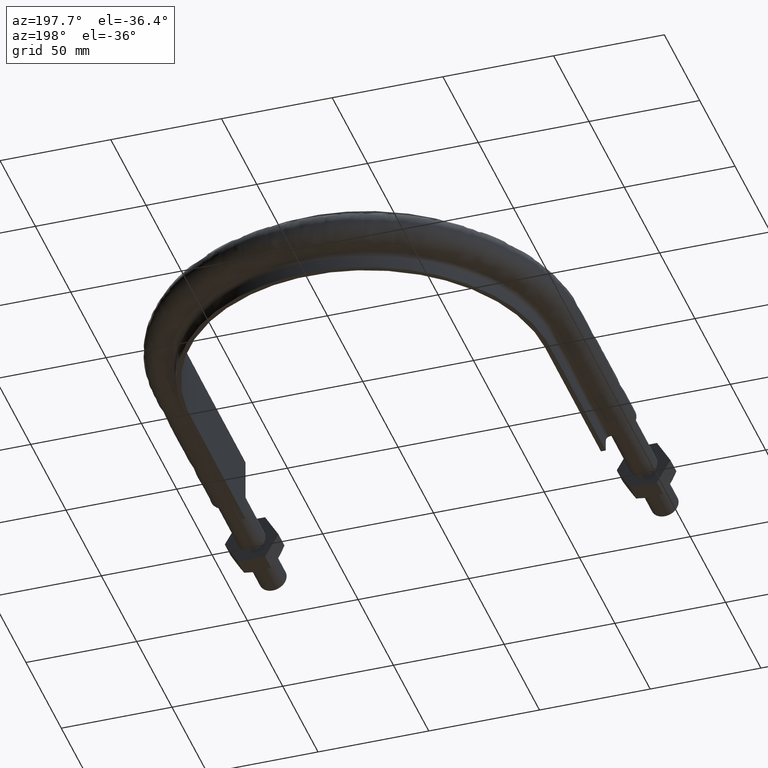
[diagram: clean part render]
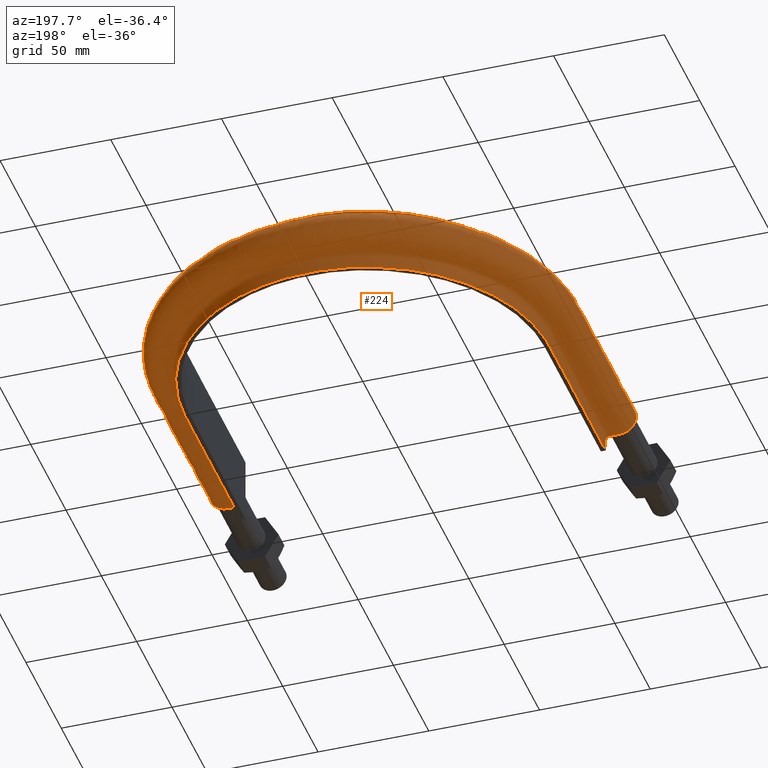
[diagram: same view with one face highlighted and labeled with its STEP entity id]
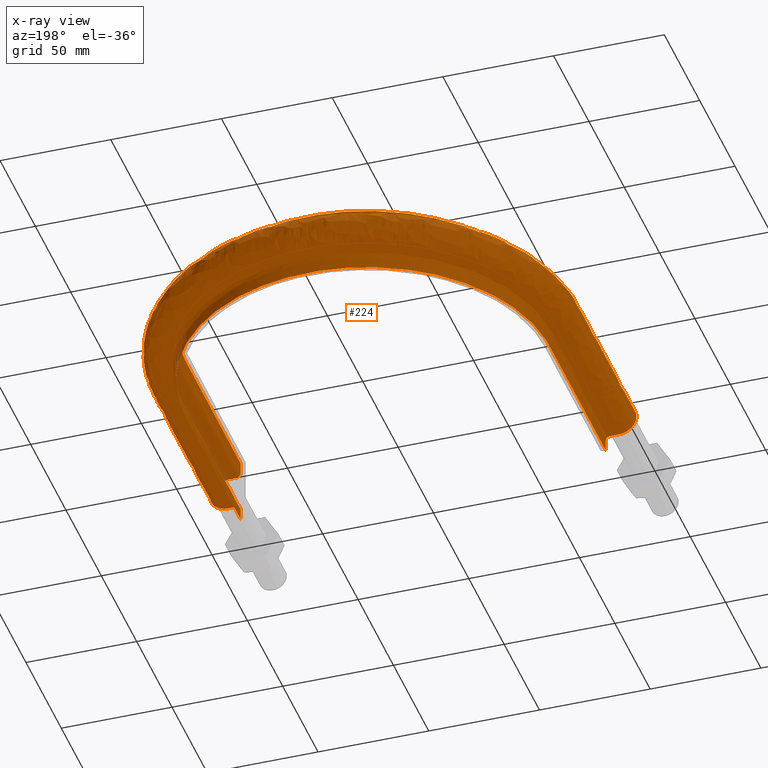
[diagram: x-ray of the same camera — body ghosted, the highlighted face saturated]
A machine part, auxiliary view. The second image highlights one B-rep face of the part: STEP entity #224.
The next image is the same camera in x-ray: the body ghosted, the highlighted face saturated — about 1% of this face is hidden behind the body in this view.
In plain terms, the highlighted face is a freeform B-spline surface patch.
Its self-contained STEP definition (entity closure, byte-faithful):
#224 = ADVANCED_FACE( '', ( #270 ), #271, .F. );
#270 = FACE_OUTER_BOUND( '', #367, .T. );
#271 = B_SPLINE_SURFACE_WITH_KNOTS( '', 3, 3, ( ( #368, #369, #370, #371, #372, #373, #374, #375, #376, #377, #378, #379, #380, #381, #382, #383, #384, #385 ), ( #386, #387, #388, #389, #390, #391, #392, #393, #394, #395, #396, #397, #398, #399, #400, #401, #402, #403 ), ( #404, #405, #406, #407, #408, #409, #410, #411, #412, #413, #414, #415, #416, #417, #418, #419, #420, #421 ), ( #422, #423, #424, #425, #426, #427, #428, #429, #430, #431, #432, #433, #434, #435, #436, #437, #438, #439 ), ( #440, #441, #442, #443, #444, #445, #446, #447, #448, #449, #450, #451, #452, #453, #454, #455, #456, #457 ), ( #458, #459, #460, #461, #462, #463, #464, #465, #466, #467, #468, #469, #470, #471, #472, #473, #474, #475 ), ( #476, #477, #478, #479, #480, #481, #482, #483, #484, #485, #486, #487, #488, #489, #490, #491, #492, #493 ), ( #494, #495, #496, #497, #498, #499, #500, #501, #502, #503, #504, #505, #506, #507, #508, #509, #510, #511 ), ( #512, #513, #514, #515, #516, #517, #518, #519, #520, #521, #522, #523, #524, #525, #526, #527, #528, #529 ), ( #530, #531, #532, #533, #534, #535, #536, #537, #538, #539, #540, #541, #542, #543, #544, #545, #546, #547 ), ( #548, #549, #550, #551, #552, #553, #554, #555, #556, #557, #558, #559, #560, #561, #562, #563, #564, #565 ), ( #566, #567, #568, #569, #570, #571, #572, #573, #574, #575, #576, #577, #578, #579, #580, #581, #582, #583 ), ( #584, #585, #586, #587, #588, #589, #590, #591, #592, #593, #594, #595, #596, #597, #598, #599, #600, #601 ), ( #602, #603, #604, #605, #606, #607, #608, #609, #610, #611, #612, #613, #614, #615, #616, #617, #618, #619 ), ( #620, #621, #622, #623, #624, #625, #626, #627, #628, #629, #630, #631, #632, #633, #634, #635, #636, #637 ), ( #638, #639, #640, #641, #642, #643, #644, #645, #646, #647, #648, #649, #650, #651, #652, #653, #654, #655 ), ( #656, #657, #658, #659, #660, #661, #662, #663, #664, #665, #666, #667, #668, #669, #670, #671, #672, #673 ), ( #674, #675, #676, #677, #678, #679, #680, #681, #682, #683, #684, #685, #686, #687, #688, #689, #690, #691 ), ( #692, #693, #694, #695, #696, #697, #698, #699, #700, #701, #702, #703, #704, #705, #706, #707, #708, #709 ), ( #710, #711, #712, #713, #714, #715, #716, #717, #718, #719, #720, #721, #722, #723, #724, #725, #726, #727 ), ( #728, #729, #730, #731, #732, #733, #734, #735, #736, #737, #738, #739, #740, #741, #742, #743, #744, #745 ), ( #746, #747, #748, #749, #750, #751, #752, #753, #754, #755, #756, #757, #758, #759, #760, #761, #762, #763 ), ( #764, #765, #766, #767, #768, #769, #770, #771, #772, #773, #774, #775, #776, #777, #778, #779, #780, #781 ), ( #782, #783, #784, #785, #786, #787, #788, #789, #790, #791, #792, #793, #794, #795, #796, #797, #798, #799 ), ( #800, #801, #802, #803, #804, #805, #806, #807, #808, #809, #810, #811, #812, #813, #814, #815, #816, #817 ), ( #818, #819, #820, #821, #822, #823, #824, #825, #826, #827, #828, #829, #830, #831, #832, #833, #834, #835 ), ( #836, #837, #838, #839, #840, #841, #842, #843, #844, #845, #846, #847, #848, #849, #850, #851, #852, #853 ), ( #854, #855, #856, #857, #858, #859, #860, #861, #862, #863, #864, #865, #866, #867, #868, #869, #870, #871 ), ( #872, #873, #874, #875, #876, #877, #878, #879, #880, #881, #882, #883, #884, #885, #886, #887, #888, #889 ), ( #890, #891, #892, #893, #894, #895, #896, #897, #898, #899, #900, #901, #902, #903, #904, #905, #906, #907 ), ( #908, #909, #910, #911, #912, #913, #914, #915, #916, #917, #918, #919, #920, #921, #922, #923, #924, #925 ) ), .UNSPECIFIED., .F., .F., .F., ( 4, 3, 1, 1, 1, 3, 3, 1, 1, 1, 3, 3, 1, 1, 1, 3, 4 ), ( 4, 3, 1, 1, 1, 1, 1, 1, 1, 1, 3, 4 ), ( 0.105263157894737, 0.157894736842105, 0.210526315789474, 0.263157894736842, 0.315789473684211, 0.368421052631579, 0.421052631578947, 0.473684210526316, 0.526315789473684, 0.578947368421053, 0.631578947368421, 0.684210526315789, 0.736842105263158, 0.789473684210526, 0.842105263157895, 0.894736842105263, 0.947368421052632 ), ( 0.000000000000000, 1.00000000000000, 1.50000000000000, 2.00000000000000, 3.00000000000000, 4.00000000000000, 5.00000000000000, 6.00000000000000, 7.00000000000000, 7.50000000000000, 8.00000000000000, 9.00000000000000 ), .UNSPECIFIED. );
#367 = EDGE_LOOP( '', ( #1411, #1412, #1413, #1414 ) );
#368 = CARTESIAN_POINT( '', ( 82.4500000000000, 64.5000000000000, -15.0000000000000 ) );
#369 = CARTESIAN_POINT( '', ( 82.4500000000000, 90.9200000000000, -15.0000000000000 ) );
#370 = CARTESIAN_POINT( '', ( 82.4500000000000, 117.340000000000, -15.0000000000000 ) );
#371 = CARTESIAN_POINT( '', ( 82.4500000000000, 143.760000000000, -15.0000000000000 ) );
#372 = CARTESIAN_POINT( '', ( 82.4500000000000, 149.917965282921, -15.0000000000000 ) );
#373 = CARTESIAN_POINT( '', ( 81.0415063471974, 162.260747551918, -15.0000000000000 ) );
#374 = CARTESIAN_POINT( '', ( 72.8782592641098, 185.697642595926, -15.0000000000000 ) );
#375 = CARTESIAN_POINT( '', ( 53.1613822653425, 210.423193230709, -15.0000000000000 ) );
#376 = CARTESIAN_POINT( '', ( 18.9732412542822, 226.886728985128, -15.0000000000000 ) );
#377 = CARTESIAN_POINT( '', ( -18.9732412542821, 226.886728985128, -15.0000000000000 ) );
#378 = CARTESIAN_POINT( '', ( -53.1613822653425, 210.423193230709, -15.0000000000000 ) );
#379 = CARTESIAN_POINT( '', ( -72.8782592641097, 185.697642595927, -15.0000000000000 ) );
#380 = CARTESIAN_POINT( '', ( -81.0415063471973, 162.260747551918, -15.0000000000000 ) );
#381 = CARTESIAN_POINT( '', ( -82.4500000000000, 149.917965282921, -15.0000000000000 ) );
#382 = CARTESIAN_POINT( '', ( -82.4500000000000, 143.760000000000, -15.0000000000000 ) );
#383 = CARTESIAN_POINT( '', ( -82.4500000000000, 117.340000000000, -15.0000000000000 ) );
#384 = CARTESIAN_POINT( '', ( -82.4500000000000, 90.9200000000000, -15.0000000000000 ) );
#385 = CARTESIAN_POINT( '', ( -82.4500000000000, 64.5000000000001, -15.0000000000000 ) );
#386 = CARTESIAN_POINT( '', ( 82.4500000000000, 64.5000000000000, -13.2666666666667 ) );
#387 = CARTESIAN_POINT( '', ( 82.4500000000000, 90.9200000000000, -13.2666666666667 ) );
#388 = CARTESIAN_POINT( '', ( 82.4500000000000, 117.340000000000, -13.2666666666667 ) );
#389 = CARTESIAN_POINT( '', ( 82.4500000000000, 143.760000000000, -13.2666666666667 ) );
#390 = CARTESIAN_POINT( '', ( 82.4500000000000, 149.917965282921, -13.2666666666667 ) );
#391 = CARTESIAN_POINT( '', ( 81.0415063471974, 162.260747551918, -13.2666666666667 ) );
#392 = CARTESIAN_POINT( '', ( 72.8782592641098, 185.697642595926, -13.2666666666667 ) );
#393 = CARTESIAN_POINT( '', ( 53.1613822653425, 210.423193230709, -13.2666666666667 ) );
#394 = CARTESIAN_POINT( '', ( 18.9732412542822, 226.886728985128, -13.2666666666667 ) );
#395 = CARTESIAN_POINT( '', ( -18.9732412542821, 226.886728985128, -13.2666666666667 ) );
#396 = CARTESIAN_POINT( '', ( -53.1613822653425, 210.423193230709, -13.2666666666667 ) );
#397 = CARTESIAN_POINT( '', ( -72.8782592641097, 185.697642595927, -13.2666666666667 ) );
#398 = CARTESIAN_POINT( '', ( -81.0415063471973, 162.260747551918, -13.2666666666667 ) );
#399 = CARTESIAN_POINT( '', ( -82.4500000000000, 149.917965282921, -13.2666666666667 ) );
#400 = CARTESIAN_POINT( '', ( -82.4500000000000, 143.760000000000, -13.2666666666667 ) );
#401 = CARTESIAN_POINT( '', ( -82.4500000000000, 117.340000000000, -13.2666666666667 ) );
#402 = CARTESIAN_POINT( '', ( -82.4500000000000, 90.9200000000000, -13.2666666666667 ) );
#403 = CARTESIAN_POINT( '', ( -82.4500000000000, 64.5000000000001, -13.2666666666667 ) );
#404 = CARTESIAN_POINT( '', ( 82.4500000000000, 64.5000000000000, -11.5333333333333 ) );
#405 = CARTESIAN_POINT( '', ( 82.4500000000000, 90.9200000000000, -11.5333333333333 ) );
#406 = CARTESIAN_POINT( '', ( 82.4500000000000, 117.340000000000, -11.5333333333333 ) );
#407 = CARTESIAN_POINT( '', ( 82.4500000000000, 143.760000000000, -11.5333333333333 ) );
#408 = CARTESIAN_POINT( '', ( 82.4500000000000, 149.917965282921, -11.5333333333333 ) );
#409 = CARTESIAN_POINT( '', ( 81.0415063471974, 162.260747551918, -11.5333333333333 ) );
#410 = CARTESIAN_POINT( '', ( 72.8782592641098, 185.697642595927, -11.5333333333334 ) );
#411 = CARTESIAN_POINT( '', ( 53.1613822653425, 210.423193230709, -11.5333333333333 ) );
#412 = CARTESIAN_POINT( '', ( 18.9732412542822, 226.886728985128, -11.5333333333333 ) );
#413 = CARTESIAN_POINT( '', ( -18.9732412542821, 226.886728985128, -11.5333333333333 ) );
#414 = CARTESIAN_POINT( '', ( -53.1613822653425, 210.423193230709, -11.5333333333333 ) );
#415 = CARTESIAN_POINT( '', ( -72.8782592641097, 185.697642595927, -11.5333333333333 ) );
#416 = CARTESIAN_POINT( '', ( -81.0415063471973, 162.260747551918, -11.5333333333333 ) );
#417 = CARTESIAN_POINT( '', ( -82.4500000000000, 149.917965282921, -11.5333333333333 ) );
#418 = CARTESIAN_POINT( '', ( -82.4500000000000, 143.760000000000, -11.5333333333333 ) );
#419 = CARTESIAN_POINT( '', ( -82.4500000000000, 117.340000000000, -11.5333333333333 ) );
#420 = CARTESIAN_POINT( '', ( -82.4500000000000, 90.9200000000000, -11.5333333333333 ) );
#421 = CARTESIAN_POINT( '', ( -82.4500000000000, 64.5000000000001, -11.5333333333333 ) );
#422 = CARTESIAN_POINT( '', ( 82.4500000000000, 64.5000000000000, -9.79999999999999 ) );
#423 = CARTESIAN_POINT( '', ( 82.4500000000000, 90.9200000000000, -9.79999999999999 ) );
#424 = CARTESIAN_POINT( '', ( 82.4500000000000, 117.340000000000, -9.79999999999999 ) );
#425 = CARTESIAN_POINT( '', ( 82.4500000000000, 143.760000000000, -9.79999999999999 ) );
#426 = CARTESIAN_POINT( '', ( 82.4500000000000, 149.917965282921, -9.79999999999999 ) );
#427 = CARTESIAN_POINT( '', ( 81.0415063471974, 162.260747551918, -9.79999999999999 ) );
#428 = CARTESIAN_POINT( '', ( 72.8782592641098, 185.697642595927, -9.80000000000001 ) );
#429 = CARTESIAN_POINT( '', ( 53.1613822653425, 210.423193230709, -9.79999999999998 ) );
#430 = CARTESIAN_POINT( '', ( 18.9732412542822, 226.886728985128, -9.79999999999999 ) );
#431 = CARTESIAN_POINT( '', ( -18.9732412542821, 226.886728985128, -9.80000000000000 ) );
#432 = CARTESIAN_POINT( '', ( -53.1613822653425, 210.423193230709, -9.79999999999999 ) );
#433 = CARTESIAN_POINT( '', ( -72.8782592641097, 185.697642595927, -9.79999999999999 ) );
#434 = CARTESIAN_POINT( '', ( -81.0415063471973, 162.260747551918, -9.79999999999999 ) );
#435 = CARTESIAN_POINT( '', ( -82.4500000000000, 149.917965282921, -9.79999999999999 ) );
#436 = CARTESIAN_POINT( '', ( -82.4500000000000, 143.760000000000, -9.79999999999999 ) );
#437 = CARTESIAN_POINT( '', ( -82.4500000000000, 117.340000000000, -9.79999999999999 ) );
#438 = CARTESIAN_POINT( '', ( -82.4500000000000, 90.9200000000000, -9.79999999999999 ) );
#439 = CARTESIAN_POINT( '', ( -82.4500000000000, 64.5000000000001, -9.79999999999999 ) );
#440 = CARTESIAN_POINT( '', ( 82.4500000000000, 64.5000000000000, -9.53823584172332 ) );
#441 = CARTESIAN_POINT( '', ( 82.4500000000000, 90.9200000000000, -9.53823584172332 ) );
#442 = CARTESIAN_POINT( '', ( 82.4500000000000, 117.340000000000, -9.53823584172332 ) );
#443 = CARTESIAN_POINT( '', ( 82.4500000000000, 143.760000000000, -9.53823584172332 ) );
#444 = CARTESIAN_POINT( '', ( 82.4500000000000, 149.917965282921, -9.53823584172332 ) );
#445 = CARTESIAN_POINT( '', ( 81.0415063471974, 162.260747551918, -9.53823584172332 ) );
#446 = CARTESIAN_POINT( '', ( 72.8782592641098, 185.697642595926, -9.53823584172334 ) );
#447 = CARTESIAN_POINT( '', ( 53.1613822653425, 210.423193230709, -9.53823584172331 ) );
#448 = CARTESIAN_POINT( '', ( 18.9732412542822, 226.886728985128, -9.53823584172333 ) );
#449 = CARTESIAN_POINT( '', ( -18.9732412542821, 226.886728985128, -9.53823584172333 ) );
#450 = CARTESIAN_POINT( '', ( -53.1613822653425, 210.423193230709, -9.53823584172332 ) );
#451 = CARTESIAN_POINT( '', ( -72.8782592641097, 185.697642595927, -9.53823584172332 ) );
#452 = CARTESIAN_POINT( '', ( -81.0415063471973, 162.260747551918, -9.53823584172332 ) );
#453 = CARTESIAN_POINT( '', ( -82.4500000000000, 149.917965282921, -9.53823584172332 ) );
#454 = CARTESIAN_POINT( '', ( -82.4500000000000, 143.760000000000, -9.53823584172332 ) );
#455 = CARTESIAN_POINT( '', ( -82.4500000000000, 117.340000000000, -9.53823584172332 ) );
#456 = CARTESIAN_POINT( '', ( -82.4500000000000, 90.9200000000000, -9.53823584172332 ) );
#457 = CARTESIAN_POINT( '', ( -82.4500000000000, 64.5000000000001, -9.53823584172332 ) );
#458 = CARTESIAN_POINT( '', ( 82.5541362568359, 64.5000000000000, -9.01470752517000 ) );
#459 = CARTESIAN_POINT( '', ( 82.5541362568359, 90.9200000000000, -9.01470752517000 ) );
#460 = CARTESIAN_POINT( '', ( 82.5541362568359, 117.340000000000, -9.01470752517000 ) );
#461 = CARTESIAN_POINT( '', ( 82.5541362568359, 143.760000000000, -9.01470752517000 ) );
#462 = CARTESIAN_POINT( '', ( 82.5541362568359, 149.925888089944, -9.01470752517000 ) );
#463 = CARTESIAN_POINT( '', ( 81.1438855386676, 162.284053785244, -9.01470752516999 ) );
#464 = CARTESIAN_POINT( '', ( 72.9702935407622, 185.750645792291, -9.01470752517001 ) );
#465 = CARTESIAN_POINT( '', ( 53.2285306995549, 210.507378724202, -9.01470752516999 ) );
#466 = CARTESIAN_POINT( '', ( 18.9972034371378, 226.991722298581, -9.01470752517000 ) );
#467 = CARTESIAN_POINT( '', ( -18.9972034371376, 226.991722298581, -9.01470752517000 ) );
#468 = CARTESIAN_POINT( '', ( -53.2285306995549, 210.507378724202, -9.01470752516999 ) );
#469 = CARTESIAN_POINT( '', ( -72.9702935407621, 185.750645792292, -9.01470752516999 ) );
#470 = CARTESIAN_POINT( '', ( -81.1438855386676, 162.284053785244, -9.01470752517000 ) );
#471 = CARTESIAN_POINT( '', ( -82.5541362568359, 149.925888089944, -9.01470752517000 ) );
#472 = CARTESIAN_POINT( '', ( -82.5541362568359, 143.760000000000, -9.01470752517000 ) );
#473 = CARTESIAN_POINT( '', ( -82.5541362568359, 117.340000000000, -9.01470752517000 ) );
#474 = CARTESIAN_POINT( '', ( -82.5541362568359, 90.9200000000000, -9.01470752517000 ) );
#475 = CARTESIAN_POINT( '', ( -82.5541362568359, 64.5000000000001, -9.01470752517000 ) );
#476 = CARTESIAN_POINT( '', ( 82.9989687109389, 64.5000000000000, -8.34896871093886 ) );
#477 = CARTESIAN_POINT( '', ( 82.9989687109389, 90.9200000000000, -8.34896871093886 ) );
#478 = CARTESIAN_POINT( '', ( 82.9989687109389, 117.340000000000, -8.34896871093886 ) );
#479 = CARTESIAN_POINT( '', ( 82.9989687109389, 143.760000000000, -8.34896871093886 ) );
#480 = CARTESIAN_POINT( '', ( 82.9989687109389, 149.959731458226, -8.34896871093886 ) );
#481 = CARTESIAN_POINT( '', ( 81.5812124445365, 162.383609591080, -8.34896871093886 ) );
#482 = CARTESIAN_POINT( '', ( 73.3634307092068, 185.977056291677, -8.34896871093888 ) );
#483 = CARTESIAN_POINT( '', ( 53.5153645429006, 210.866988727559, -8.34896871093885 ) );
#484 = CARTESIAN_POINT( '', ( 19.0995612223047, 227.440215788808, -8.34896871093886 ) );
#485 = CARTESIAN_POINT( '', ( -19.0995612223046, 227.440215788808, -8.34896871093886 ) );
#486 = CARTESIAN_POINT( '', ( -53.5153645429006, 210.866988727559, -8.34896871093886 ) );
#487 = CARTESIAN_POINT( '', ( -73.3634307092067, 185.977056291677, -8.34896871093886 ) );
#488 = CARTESIAN_POINT( '', ( -81.5812124445364, 162.383609591080, -8.34896871093886 ) );
#489 = CARTESIAN_POINT( '', ( -82.9989687109388, 149.959731458226, -8.34896871093886 ) );
#490 = CARTESIAN_POINT( '', ( -82.9989687109388, 143.760000000000, -8.34896871093886 ) );
#491 = CARTESIAN_POINT( '', ( -82.9989687109388, 117.340000000000, -8.34896871093886 ) );
#492 = CARTESIAN_POINT( '', ( -82.9989687109388, 90.9200000000000, -8.34896871093886 ) );
#493 = CARTESIAN_POINT( '', ( -82.9989687109388, 64.5000000000001, -8.34896871093886 ) );
#494 = CARTESIAN_POINT( '', ( 83.6647075251700, 64.5000000000000, -7.90413625683589 ) );
#495 = CARTESIAN_POINT( '', ( 83.6647075251700, 90.9200000000000, -7.90413625683589 ) );
#496 = CARTESIAN_POINT( '', ( 83.6647075251700, 117.340000000000, -7.90413625683589 ) );
#497 = CARTESIAN_POINT( '', ( 83.6647075251700, 143.760000000000, -7.90413625683589 ) );
#498 = CARTESIAN_POINT( '', ( 83.6647075251700, 150.010381638225, -7.90413625683589 ) );
#499 = CARTESIAN_POINT( '', ( 82.2357184120284, 162.532605383800, -7.90413625683589 ) );
#500 = CARTESIAN_POINT( '', ( 73.9518020610190, 186.315903549785, -7.90413625683591 ) );
#501 = CARTESIAN_POINT( '', ( 53.9446417257792, 211.405183130896, -7.90413625683589 ) );
#502 = CARTESIAN_POINT( '', ( 19.2527504734392, 228.111433730801, -7.90413625683590 ) );
#503 = CARTESIAN_POINT( '', ( -19.2527504734391, 228.111433730801, -7.90413625683590 ) );
#504 = CARTESIAN_POINT( '', ( -53.9446417257792, 211.405183130896, -7.90413625683589 ) );
#505 = CARTESIAN_POINT( '', ( -73.9518020610189, 186.315903549785, -7.90413625683589 ) );
#506 = CARTESIAN_POINT( '', ( -82.2357184120283, 162.532605383800, -7.90413625683590 ) );
#507 = CARTESIAN_POINT( '', ( -83.6647075251700, 150.010381638225, -7.90413625683589 ) );
#508 = CARTESIAN_POINT( '', ( -83.6647075251700, 143.760000000000, -7.90413625683589 ) );
#509 = CARTESIAN_POINT( '', ( -83.6647075251700, 117.340000000000, -7.90413625683589 ) );
#510 = CARTESIAN_POINT( '', ( -83.6647075251700, 90.9200000000000, -7.90413625683589 ) );
#511 = CARTESIAN_POINT( '', ( -83.6647075251700, 64.5000000000001, -7.90413625683589 ) );
#512 = CARTESIAN_POINT( '', ( 84.1882358417233, 64.5000000000000, -7.79999999999998 ) );
#513 = CARTESIAN_POINT( '', ( 84.1882358417233, 90.9200000000000, -7.79999999999998 ) );
#514 = CARTESIAN_POINT( '', ( 84.1882358417233, 117.340000000000, -7.79999999999998 ) );
#515 = CARTESIAN_POINT( '', ( 84.1882358417233, 143.760000000000, -7.79999999999998 ) );
#516 = CARTESIAN_POINT( '', ( 84.1882358417234, 150.050212278863, -7.79999999999998 ) );
#517 = CARTESIAN_POINT( '', ( 82.7504133644789, 162.649773731010, -7.79999999999998 ) );
#518 = CARTESIAN_POINT( '', ( 74.4144896146629, 186.582368612080, -7.80000000000000 ) );
#519 = CARTESIAN_POINT( '', ( 54.2822197009296, 211.828412186997, -7.79999999999997 ) );
#520 = CARTESIAN_POINT( '', ( 19.3732165016264, 228.639270761931, -7.79999999999999 ) );
#521 = CARTESIAN_POINT( '', ( -19.3732165016263, 228.639270761931, -7.79999999999999 ) );
#522 = CARTESIAN_POINT( '', ( -54.2822197009296, 211.828412186997, -7.79999999999999 ) );
#523 = CARTESIAN_POINT( '', ( -74.4144896146628, 186.582368612080, -7.79999999999998 ) );
#524 = CARTESIAN_POINT( '', ( -82.7504133644789, 162.649773731010, -7.79999999999998 ) );
#525 = CARTESIAN_POINT( '', ( -84.1882358417233, 150.050212278863, -7.79999999999998 ) );
#526 = CARTESIAN_POINT( '', ( -84.1882358417233, 143.760000000000, -7.79999999999998 ) );
#527 = CARTESIAN_POINT( '', ( -84.1882358417233, 117.340000000000, -7.79999999999998 ) );
#528 = CARTESIAN_POINT( '', ( -84.1882358417233, 90.9200000000000, -7.79999999999998 ) );
#529 = CARTESIAN_POINT( '', ( -84.1882358417233, 64.5000000000001, -7.79999999999998 ) );
#530 = CARTESIAN_POINT( '', ( 84.4500000000000, 64.5000000000000, -7.79999999999998 ) );
#531 = CARTESIAN_POINT( '', ( 84.4500000000000, 90.9200000000000, -7.79999999999998 ) );
#532 = CARTESIAN_POINT( '', ( 84.4500000000000, 117.340000000000, -7.79999999999998 ) );
#533 = CARTESIAN_POINT( '', ( 84.4500000000000, 143.760000000000, -7.79999999999998 ) );
#534 = CARTESIAN_POINT( '', ( 84.4500000000000, 150.070127599181, -7.79999999999998 ) );
#535 = CARTESIAN_POINT( '', ( 83.0077608407042, 162.708357904614, -7.79999999999998 ) );
#536 = CARTESIAN_POINT( '', ( 74.6458333914849, 186.715601143227, -7.80000000000000 ) );
#537 = CARTESIAN_POINT( '', ( 54.4510086885049, 212.040026715048, -7.79999999999997 ) );
#538 = CARTESIAN_POINT( '', ( 19.4334495157200, 228.903189277496, -7.79999999999999 ) );
#539 = CARTESIAN_POINT( '', ( -19.4334495157199, 228.903189277496, -7.79999999999999 ) );
#540 = CARTESIAN_POINT( '', ( -54.4510086885048, 212.040026715048, -7.79999999999998 ) );
#541 = CARTESIAN_POINT( '', ( -74.6458333914848, 186.715601143228, -7.79999999999998 ) );
#542 = CARTESIAN_POINT( '', ( -83.0077608407041, 162.708357904614, -7.79999999999998 ) );
#543 = CARTESIAN_POINT( '', ( -84.4500000000000, 150.070127599181, -7.79999999999998 ) );
#544 = CARTESIAN_POINT( '', ( -84.4500000000000, 143.760000000000, -7.79999999999998 ) );
#545 = CARTESIAN_POINT( '', ( -84.4500000000000, 117.340000000000, -7.79999999999998 ) );
#546 = CARTESIAN_POINT( '', ( -84.4500000000000, 90.9200000000000, -7.79999999999998 ) );
#547 = CARTESIAN_POINT( '', ( -84.4500000000000, 64.5000000000001, -7.79999999999998 ) );
#548 = CARTESIAN_POINT( '', ( 85.8000000000000, 64.5000000000000, -7.79999999999999 ) );
#549 = CARTESIAN_POINT( '', ( 85.8000000000000, 90.9200000000000, -7.79999999999999 ) );
#550 = CARTESIAN_POINT( '', ( 85.8000000000000, 117.340000000000, -7.79999999999999 ) );
#551 = CARTESIAN_POINT( '', ( 85.8000000000000, 143.760000000000, -7.79999999999999 ) );
#552 = CARTESIAN_POINT( '', ( 85.8000000000000, 150.172837162657, -7.79999999999999 ) );
#553 = CARTESIAN_POINT( '', ( 84.3349826238212, 163.010494892684, -7.79999999999999 ) );
#554 = CARTESIAN_POINT( '', ( 75.8389459274631, 187.402723162656, -7.80000000000001 ) );
#555 = CARTESIAN_POINT( '', ( 55.3215065241394, 213.131389316976, -7.79999999999998 ) );
#556 = CARTESIAN_POINT( '', ( 19.7440900921905, 230.264299974845, -7.79999999999999 ) );
#557 = CARTESIAN_POINT( '', ( -19.7440900921904, 230.264299974845, -7.80000000000000 ) );
#558 = CARTESIAN_POINT( '', ( -55.3215065241394, 213.131389316976, -7.79999999999999 ) );
#559 = CARTESIAN_POINT( '', ( -75.8389459274630, 187.402723162656, -7.79999999999999 ) );
#560 = CARTESIAN_POINT( '', ( -84.3349826238212, 163.010494892684, -7.79999999999999 ) );
#561 = CARTESIAN_POINT( '', ( -85.8000000000000, 150.172837162657, -7.79999999999999 ) );
#562 = CARTESIAN_POINT( '', ( -85.8000000000000, 143.760000000000, -7.79999999999999 ) );
#563 = CARTESIAN_POINT( '', ( -85.8000000000000, 117.340000000000, -7.79999999999999 ) );
#564 = CARTESIAN_POINT( '', ( -85.8000000000000, 90.9200000000000, -7.79999999999999 ) );
#565 = CARTESIAN_POINT( '', ( -85.8000000000000, 64.5000000000001, -7.79999999999999 ) );
#566 = CARTESIAN_POINT( '', ( 87.1500000000000, 64.5000000000000, -7.79999999999999 ) );
#567 = CARTESIAN_POINT( '', ( 87.1500000000000, 90.9200000000000, -7.79999999999999 ) );
#568 = CARTESIAN_POINT( '', ( 87.1500000000000, 117.340000000000, -7.79999999999999 ) );
#569 = CARTESIAN_POINT( '', ( 87.1500000000000, 143.760000000000, -7.79999999999999 ) );
#570 = CARTESIAN_POINT( '', ( 87.1500000000000, 150.275546726132, -7.79999999999999 ) );
#571 = CARTESIAN_POINT( '', ( 85.6622044069384, 163.312631880754, -7.79999999999999 ) );
#572 = CARTESIAN_POINT( '', ( 77.0320584634413, 188.089845182084, -7.80000000000001 ) );
#573 = CARTESIAN_POINT( '', ( 56.1920043597740, 214.222751918905, -7.79999999999998 ) );
#574 = CARTESIAN_POINT( '', ( 20.0547306686611, 231.625410672194, -7.79999999999999 ) );
#575 = CARTESIAN_POINT( '', ( -20.0547306686610, 231.625410672194, -7.80000000000000 ) );
#576 = CARTESIAN_POINT( '', ( -56.1920043597740, 214.222751918905, -7.79999999999999 ) );
#577 = CARTESIAN_POINT( '', ( -77.0320584634412, 188.089845182084, -7.79999999999999 ) );
#578 = CARTESIAN_POINT( '', ( -85.6622044069383, 163.312631880754, -7.79999999999999 ) );
#579 = CARTESIAN_POINT( '', ( -87.1500000000000, 150.275546726132, -7.79999999999999 ) );
#580 = CARTESIAN_POINT( '', ( -87.1500000000000, 143.760000000000, -7.79999999999999 ) );
#581 = CARTESIAN_POINT( '', ( -87.1499999999999, 117.340000000000, -7.79999999999999 ) );
#582 = CARTESIAN_POINT( '', ( -87.1499999999999, 90.9200000000000, -7.79999999999999 ) );
#583 = CARTESIAN_POINT( '', ( -87.1499999999999, 64.5000000000001, -7.79999999999999 ) );
#584 = CARTESIAN_POINT( '', ( 88.5000000000000, 64.5000000000000, -7.79999999999999 ) );
#585 = CARTESIAN_POINT( '', ( 88.5000000000000, 90.9200000000000, -7.79999999999999 ) );
#586 = CARTESIAN_POINT( '', ( 88.5000000000000, 117.340000000000, -7.79999999999999 ) );
#587 = CARTESIAN_POINT( '', ( 88.5000000000000, 143.760000000000, -7.79999999999999 ) );
#588 = CARTESIAN_POINT( '', ( 88.5000000000000, 150.378256289608, -7.79999999999999 ) );
#589 = CARTESIAN_POINT( '', ( 86.9894261900554, 163.614768868824, -7.79999999999999 ) );
#590 = CARTESIAN_POINT( '', ( 78.2251709994195, 188.776967201512, -7.80000000000001 ) );
#591 = CARTESIAN_POINT( '', ( 57.0625021954086, 215.314114520833, -7.79999999999998 ) );
#592 = CARTESIAN_POINT( '', ( 20.3653712451316, 232.986521369543, -7.79999999999999 ) );
#593 = CARTESIAN_POINT( '', ( -20.3653712451315, 232.986521369543, -7.80000000000000 ) );
#594 = CARTESIAN_POINT( '', ( -57.0625021954085, 215.314114520833, -7.79999999999999 ) );
#595 = CARTESIAN_POINT( '', ( -78.2251709994195, 188.776967201512, -7.79999999999999 ) );
#596 = CARTESIAN_POINT( '', ( -86.9894261900554, 163.614768868824, -7.79999999999999 ) );
#597 = CARTESIAN_POINT( '', ( -88.5000000000000, 150.378256289608, -7.79999999999999 ) );
#598 = CARTESIAN_POINT( '', ( -88.5000000000000, 143.760000000000, -7.79999999999999 ) );
#599 = CARTESIAN_POINT( '', ( -88.5000000000000, 117.340000000000, -7.79999999999999 ) );
#600 = CARTESIAN_POINT( '', ( -88.5000000000000, 90.9200000000000, -7.79999999999999 ) );
#601 = CARTESIAN_POINT( '', ( -88.5000000000000, 64.5000000000001, -7.79999999999999 ) );
#602 = CARTESIAN_POINT( '', ( 90.5373902247172, 64.5000000000000, -7.79999999999998 ) );
#603 = CARTESIAN_POINT( '', ( 90.5373902247172, 90.9200000000000, -7.79999999999998 ) );
#604 = CARTESIAN_POINT( '', ( 90.5373902247172, 117.340000000000, -7.79999999999998 ) );
#605 = CARTESIAN_POINT( '', ( 90.5373902247172, 143.760000000000, -7.79999999999998 ) );
#606 = CARTESIAN_POINT( '', ( 90.5373902247172, 150.533263297467, -7.79999999999998 ) );
#607 = CARTESIAN_POINT( '', ( 88.9924400322439, 164.070747347356, -7.79999999999998 ) );
#608 = CARTESIAN_POINT( '', ( 80.0257901237081, 189.813956598231, -7.80000000000000 ) );
#609 = CARTESIAN_POINT( '', ( 58.3762383294525, 216.961174888827, -7.79999999999997 ) );
#610 = CARTESIAN_POINT( '', ( 20.8341831517253, 235.040679613644, -7.79999999999999 ) );
#611 = CARTESIAN_POINT( '', ( -20.8341831517252, 235.040679613644, -7.79999999999999 ) );
#612 = CARTESIAN_POINT( '', ( -58.3762383294525, 216.961174888827, -7.79999999999999 ) );
#613 = CARTESIAN_POINT( '', ( -80.0257901237080, 189.813956598231, -7.79999999999998 ) );
#614 = CARTESIAN_POINT( '', ( -88.9924400322439, 164.070747347356, -7.79999999999998 ) );
#615 = CARTESIAN_POINT( '', ( -90.5373902247171, 150.533263297467, -7.79999999999998 ) );
#616 = CARTESIAN_POINT( '', ( -90.5373902247171, 143.760000000000, -7.79999999999998 ) );
#617 = CARTESIAN_POINT( '', ( -90.5373902247171, 117.340000000000, -7.79999999999998 ) );
#618 = CARTESIAN_POINT( '', ( -90.5373902247171, 90.9200000000000, -7.79999999999998 ) );
#619 = CARTESIAN_POINT( '', ( -90.5373902247171, 64.5000000000001, -7.79999999999998 ) );
#620 = CARTESIAN_POINT( '', ( 94.6121706741515, 64.5000000000000, -6.11217067415154 ) );
#621 = CARTESIAN_POINT( '', ( 94.6121706741515, 90.9200000000000, -6.11217067415154 ) );
#622 = CARTESIAN_POINT( '', ( 94.6121706741515, 117.340000000000, -6.11217067415154 ) );
#623 = CARTESIAN_POINT( '', ( 94.6121706741515, 143.760000000000, -6.11217067415154 ) );
#624 = CARTESIAN_POINT( '', ( 94.6121706741516, 150.843277313186, -6.11217067415154 ) );
#625 = CARTESIAN_POINT( '', ( 92.9984677166210, 164.982704304421, -6.11217067415154 ) );
#626 = CARTESIAN_POINT( '', ( 83.6270283722852, 191.887935391669, -6.11217067415155 ) );
#627 = CARTESIAN_POINT( '', ( 61.0037105975404, 220.255295624814, -6.11217067415153 ) );
#628 = CARTESIAN_POINT( '', ( 21.7718069649128, 239.148996101846, -6.11217067415154 ) );
#629 = CARTESIAN_POINT( '', ( -21.7718069649127, 239.148996101846, -6.11217067415154 ) );
#630 = CARTESIAN_POINT( '', ( -61.0037105975404, 220.255295624814, -6.11217067415154 ) );
#631 = CARTESIAN_POINT( '', ( -83.6270283722852, 191.887935391669, -6.11217067415154 ) );
#632 = CARTESIAN_POINT( '', ( -92.9984677166209, 164.982704304421, -6.11217067415154 ) );
#633 = CARTESIAN_POINT( '', ( -94.6121706741515, 150.843277313186, -6.11217067415154 ) );
#634 = CARTESIAN_POINT( '', ( -94.6121706741515, 143.760000000000, -6.11217067415154 ) );
#635 = CARTESIAN_POINT( '', ( -94.6121706741515, 117.340000000000, -6.11217067415154 ) );
#636 = CARTESIAN_POINT( '', ( -94.6121706741515, 90.9200000000000, -6.11217067415154 ) );
#637 = CARTESIAN_POINT( '', ( -94.6121706741515, 64.5000000000001, -6.11217067415154 ) );
#638 = CARTESIAN_POINT( '', ( 97.1439146629242, 64.5000000000000, -1.05853928181154E-015 ) );
#639 = CARTESIAN_POINT( '', ( 97.1439146629242, 90.9200000000000, -1.05853928181154E-015 ) );
#640 = CARTESIAN_POINT( '', ( 97.1439146629242, 117.340000000000, -1.05853928181154E-015 ) );
#641 = CARTESIAN_POINT( '', ( 97.1439146629242, 143.760000000000, -1.05853928181154E-015 ) );
#642 = CARTESIAN_POINT( '', ( 97.1439146629242, 151.035895327940, -1.05853928181154E-015 ) );
#643 = CARTESIAN_POINT( '', ( 95.4874942137875, 165.549321714297, -1.05853928181154E-015 ) );
#644 = CARTESIAN_POINT( '', ( 85.8645509581312, 193.176540608143, -1.05853928181154E-015 ) );
#645 = CARTESIAN_POINT( '', ( 62.6362125698422, 222.301999852224, -1.05853928181154E-015 ) );
#646 = CARTESIAN_POINT( '', ( 22.3543717146522, 241.701576713748, -1.05853928181154E-015 ) );
#647 = CARTESIAN_POINT( '', ( -22.3543717146521, 241.701576713748, -1.05853928181154E-015 ) );
#648 = CARTESIAN_POINT( '', ( -62.6362125698422, 222.301999852224, -1.05853928181154E-015 ) );
#649 = CARTESIAN_POINT( '', ( -85.8645509581311, 193.176540608143, -1.05853928181154E-015 ) );
#650 = CARTESIAN_POINT( '', ( -95.4874942137875, 165.549321714297, -1.05853928181154E-015 ) );
#651 = CARTESIAN_POINT( '', ( -97.1439146629242, 151.035895327940, -1.05853928181154E-015 ) );
#652 = CARTESIAN_POINT( '', ( -97.1439146629242, 143.760000000000, -1.05853928181154E-015 ) );
#653 = CARTESIAN_POINT( '', ( -97.1439146629242, 117.340000000000, -1.05853928181154E-015 ) );
#654 = CARTESIAN_POINT( '', ( -97.1439146629242, 90.9200000000000, -1.05853928181154E-015 ) );
#655 = CARTESIAN_POINT( '', ( -97.1439146629242, 64.5000000000001, -1.05853928181154E-015 ) );
#656 = CARTESIAN_POINT( '', ( 94.6121706741515, 64.5000000000000, 6.11217067415154 ) );
#657 = CARTESIAN_POINT( '', ( 94.6121706741515, 90.9200000000000, 6.11217067415154 ) );
#658 = CARTESIAN_POINT( '', ( 94.6121706741515, 117.340000000000, 6.11217067415154 ) );
#659 = CARTESIAN_POINT( '', ( 94.6121706741515, 143.760000000000, 6.11217067415154 ) );
#660 = CARTESIAN_POINT( '', ( 94.6121706741516, 150.843277313186, 6.11217067415154 ) );
#661 = CARTESIAN_POINT( '', ( 92.9984677166210, 164.982704304421, 6.11217067415154 ) );
#662 = CARTESIAN_POINT( '', ( 83.6270283722852, 191.887935391669, 6.11217067415155 ) );
#663 = CARTESIAN_POINT( '', ( 61.0037105975404, 220.255295624814, 6.11217067415153 ) );
#664 = CARTESIAN_POINT( '', ( 21.7718069649128, 239.148996101846, 6.11217067415154 ) );
#665 = CARTESIAN_POINT( '', ( -21.7718069649127, 239.148996101846, 6.11217067415154 ) );
#666 = CARTESIAN_POINT( '', ( -61.0037105975404, 220.255295624814, 6.11217067415154 ) );
#667 = CARTESIAN_POINT( '', ( -83.6270283722852, 191.887935391669, 6.11217067415154 ) );
#668 = CARTESIAN_POINT( '', ( -92.9984677166209, 164.982704304421, 6.11217067415154 ) );
#669 = CARTESIAN_POINT( '', ( -94.6121706741515, 150.843277313186, 6.11217067415154 ) );
#670 = CARTESIAN_POINT( '', ( -94.6121706741515, 143.760000000000, 6.11217067415154 ) );
#671 = CARTESIAN_POINT( '', ( -94.6121706741515, 117.340000000000, 6.11217067415154 ) );
#672 = CARTESIAN_POINT( '', ( -94.6121706741515, 90.9200000000000, 6.11217067415154 ) );
#673 = CARTESIAN_POINT( '', ( -94.6121706741515, 64.5000000000001, 6.11217067415154 ) );
#674 = CARTESIAN_POINT( '', ( 90.5373902247172, 64.5000000000000, 7.79999999999998 ) );
#675 = CARTESIAN_POINT( '', ( 90.5373902247172, 90.9200000000000, 7.79999999999998 ) );
#676 = CARTESIAN_POINT( '', ( 90.5373902247172, 117.340000000000, 7.79999999999998 ) );
#677 = CARTESIAN_POINT( '', ( 90.5373902247172, 143.760000000000, 7.79999999999998 ) );
#678 = CARTESIAN_POINT( '', ( 90.5373902247172, 150.533263297467, 7.79999999999998 ) );
#679 = CARTESIAN_POINT( '', ( 88.9924400322439, 164.070747347356, 7.79999999999998 ) );
#680 = CARTESIAN_POINT( '', ( 80.0257901237081, 189.813956598231, 7.80000000000000 ) );
#681 = CARTESIAN_POINT( '', ( 58.3762383294525, 216.961174888827, 7.79999999999997 ) );
#682 = CARTESIAN_POINT( '', ( 20.8341831517253, 235.040679613644, 7.79999999999999 ) );
#683 = CARTESIAN_POINT( '', ( -20.8341831517252, 235.040679613644, 7.79999999999999 ) );
#684 = CARTESIAN_POINT( '', ( -58.3762383294525, 216.961174888827, 7.79999999999998 ) );
#685 = CARTESIAN_POINT( '', ( -80.0257901237080, 189.813956598231, 7.79999999999998 ) );
#686 = CARTESIAN_POINT( '', ( -88.9924400322439, 164.070747347356, 7.79999999999998 ) );
#687 = CARTESIAN_POINT( '', ( -90.5373902247171, 150.533263297467, 7.79999999999998 ) );
#688 = CARTESIAN_POINT( '', ( -90.5373902247171, 143.760000000000, 7.79999999999998 ) );
#689 = CARTESIAN_POINT( '', ( -90.5373902247171, 117.340000000000, 7.79999999999998 ) );
#690 = CARTESIAN_POINT( '', ( -90.5373902247171, 90.9200000000000, 7.79999999999998 ) );
#691 = CARTESIAN_POINT( '', ( -90.5373902247171, 64.5000000000001, 7.79999999999998 ) );
#692 = CARTESIAN_POINT( '', ( 88.5000000000000, 64.5000000000000, 7.79999999999998 ) );
#693 = CARTESIAN_POINT( '', ( 88.5000000000000, 90.9200000000000, 7.79999999999998 ) );
#694 = CARTESIAN_POINT( '', ( 88.5000000000000, 117.340000000000, 7.79999999999998 ) );
#695 = CARTESIAN_POINT( '', ( 88.5000000000000, 143.760000000000, 7.79999999999998 ) );
#696 = CARTESIAN_POINT( '', ( 88.5000000000000, 150.378256289608, 7.79999999999998 ) );
#697 = CARTESIAN_POINT( '', ( 86.9894261900554, 163.614768868824, 7.79999999999998 ) );
#698 = CARTESIAN_POINT( '', ( 78.2251709994195, 188.776967201512, 7.80000000000000 ) );
#699 = CARTESIAN_POINT( '', ( 57.0625021954086, 215.314114520833, 7.79999999999997 ) );
#700 = CARTESIAN_POINT( '', ( 20.3653712451316, 232.986521369543, 7.79999999999999 ) );
#701 = CARTESIAN_POINT( '', ( -20.3653712451315, 232.986521369543, 7.79999999999999 ) );
#702 = CARTESIAN_POINT( '', ( -57.0625021954085, 215.314114520833, 7.79999999999998 ) );
#703 = CARTESIAN_POINT( '', ( -78.2251709994195, 188.776967201512, 7.79999999999998 ) );
#704 = CARTESIAN_POINT( '', ( -86.9894261900554, 163.614768868824, 7.79999999999998 ) );
#705 = CARTESIAN_POINT( '', ( -88.5000000000000, 150.378256289608, 7.79999999999998 ) );
#706 = CARTESIAN_POINT( '', ( -88.5000000000000, 143.760000000000, 7.79999999999998 ) );
#707 = CARTESIAN_POINT( '', ( -88.5000000000000, 117.340000000000, 7.79999999999998 ) );
#708 = CARTESIAN_POINT( '', ( -88.5000000000000, 90.9200000000000, 7.79999999999998 ) );
#709 = CARTESIAN_POINT( '', ( -88.5000000000000, 64.5000000000001, 7.79999999999998 ) );
#710 = CARTESIAN_POINT( '', ( 87.1500000000000, 64.5000000000000, 7.79999999999999 ) );
#711 = CARTESIAN_POINT( '', ( 87.1500000000000, 90.9200000000000, 7.79999999999999 ) );
#712 = CARTESIAN_POINT( '', ( 87.1500000000000, 117.340000000000, 7.79999999999999 ) );
#713 = CARTESIAN_POINT( '', ( 87.1500000000000, 143.760000000000, 7.79999999999999 ) );
#714 = CARTESIAN_POINT( '', ( 87.1500000000000, 150.275546726132, 7.79999999999999 ) );
#715 = CARTESIAN_POINT( '', ( 85.6622044069384, 163.312631880754, 7.79999999999999 ) );
#716 = CARTESIAN_POINT( '', ( 77.0320584634413, 188.089845182084, 7.80000000000001 ) );
#717 = CARTESIAN_POINT( '', ( 56.1920043597740, 214.222751918905, 7.79999999999998 ) );
#718 = CARTESIAN_POINT( '', ( 20.0547306686611, 231.625410672194, 7.79999999999999 ) );
#719 = CARTESIAN_POINT( '', ( -20.0547306686610, 231.625410672194, 7.80000000000000 ) );
#720 = CARTESIAN_POINT( '', ( -56.1920043597740, 214.222751918905, 7.79999999999999 ) );
#721 = CARTESIAN_POINT( '', ( -77.0320584634412, 188.089845182084, 7.79999999999999 ) );
#722 = CARTESIAN_POINT( '', ( -85.6622044069383, 163.312631880754, 7.79999999999999 ) );
#723 = CARTESIAN_POINT( '', ( -87.1500000000000, 150.275546726132, 7.79999999999999 ) );
#724 = CARTESIAN_POINT( '', ( -87.1500000000000, 143.760000000000, 7.79999999999999 ) );
#725 = CARTESIAN_POINT( '', ( -87.1499999999999, 117.340000000000, 7.79999999999999 ) );
#726 = CARTESIAN_POINT( '', ( -87.1499999999999, 90.9200000000000, 7.79999999999999 ) );
#727 = CARTESIAN_POINT( '', ( -87.1499999999999, 64.5000000000001, 7.79999999999999 ) );
#728 = CARTESIAN_POINT( '', ( 85.8000000000000, 64.5000000000000, 7.79999999999999 ) );
#729 = CARTESIAN_POINT( '', ( 85.8000000000000, 90.9200000000000, 7.79999999999999 ) );
#730 = CARTESIAN_POINT( '', ( 85.8000000000000, 117.340000000000, 7.79999999999999 ) );
#731 = CARTESIAN_POINT( '', ( 85.8000000000000, 143.760000000000, 7.79999999999999 ) );
#732 = CARTESIAN_POINT( '', ( 85.8000000000000, 150.172837162657, 7.79999999999999 ) );
#733 = CARTESIAN_POINT( '', ( 84.3349826238212, 163.010494892684, 7.79999999999999 ) );
#734 = CARTESIAN_POINT( '', ( 75.8389459274631, 187.402723162656, 7.80000000000001 ) );
#735 = CARTESIAN_POINT( '', ( 55.3215065241394, 213.131389316976, 7.79999999999998 ) );
#736 = CARTESIAN_POINT( '', ( 19.7440900921905, 230.264299974845, 7.79999999999999 ) );
#737 = CARTESIAN_POINT( '', ( -19.7440900921904, 230.264299974845, 7.80000000000000 ) );
#738 = CARTESIAN_POINT( '', ( -55.3215065241394, 213.131389316976, 7.79999999999999 ) );
#739 = CARTESIAN_POINT( '', ( -75.8389459274630, 187.402723162656, 7.79999999999999 ) );
#740 = CARTESIAN_POINT( '', ( -84.3349826238212, 163.010494892684, 7.79999999999999 ) );
#741 = CARTESIAN_POINT( '', ( -85.8000000000000, 150.172837162657, 7.79999999999999 ) );
#742 = CARTESIAN_POINT( '', ( -85.8000000000000, 143.760000000000, 7.79999999999999 ) );
#743 = CARTESIAN_POINT( '', ( -85.8000000000000, 117.340000000000, 7.79999999999999 ) );
#744 = CARTESIAN_POINT( '', ( -85.8000000000000, 90.9200000000000, 7.79999999999999 ) );
#745 = CARTESIAN_POINT( '', ( -85.8000000000000, 64.5000000000001, 7.79999999999999 ) );
#746 = CARTESIAN_POINT( '', ( 84.4500000000000, 64.5000000000000, 7.79999999999999 ) );
#747 = CARTESIAN_POINT( '', ( 84.4500000000000, 90.9200000000000, 7.79999999999999 ) );
#748 = CARTESIAN_POINT( '', ( 84.4500000000000, 117.340000000000, 7.79999999999999 ) );
#749 = CARTESIAN_POINT( '', ( 84.4500000000000, 143.760000000000, 7.79999999999999 ) );
#750 = CARTESIAN_POINT( '', ( 84.4500000000000, 150.070127599181, 7.79999999999999 ) );
#751 = CARTESIAN_POINT( '', ( 83.0077608407042, 162.708357904614, 7.79999999999999 ) );
#752 = CARTESIAN_POINT( '', ( 74.6458333914849, 186.715601143227, 7.80000000000001 ) );
#753 = CARTESIAN_POINT( '', ( 54.4510086885049, 212.040026715048, 7.79999999999998 ) );
#754 = CARTESIAN_POINT( '', ( 19.4334495157200, 228.903189277496, 7.79999999999999 ) );
#755 = CARTESIAN_POINT( '', ( -19.4334495157199, 228.903189277496, 7.80000000000000 ) );
#756 = CARTESIAN_POINT( '', ( -54.4510086885048, 212.040026715048, 7.79999999999999 ) );
#757 = CARTESIAN_POINT( '', ( -74.6458333914848, 186.715601143228, 7.79999999999999 ) );
#758 = CARTESIAN_POINT( '', ( -83.0077608407041, 162.708357904614, 7.79999999999999 ) );
#759 = CARTESIAN_POINT( '', ( -84.4500000000000, 150.070127599181, 7.79999999999999 ) );
#760 = CARTESIAN_POINT( '', ( -84.4500000000000, 143.760000000000, 7.79999999999999 ) );
#761 = CARTESIAN_POINT( '', ( -84.4500000000000, 117.340000000000, 7.79999999999999 ) );
#762 = CARTESIAN_POINT( '', ( -84.4500000000000, 90.9200000000000, 7.79999999999999 ) );
#763 = CARTESIAN_POINT( '', ( -84.4500000000000, 64.5000000000001, 7.79999999999999 ) );
#764 = CARTESIAN_POINT( '', ( 84.1882358417233, 64.5000000000000, 7.79999999999999 ) );
#765 = CARTESIAN_POINT( '', ( 84.1882358417233, 90.9200000000000, 7.79999999999999 ) );
#766 = CARTESIAN_POINT( '', ( 84.1882358417233, 117.340000000000, 7.79999999999999 ) );
#767 = CARTESIAN_POINT( '', ( 84.1882358417233, 143.760000000000, 7.79999999999999 ) );
#768 = CARTESIAN_POINT( '', ( 84.1882358417234, 150.050212278863, 7.79999999999999 ) );
#769 = CARTESIAN_POINT( '', ( 82.7504133644789, 162.649773731010, 7.79999999999999 ) );
#770 = CARTESIAN_POINT( '', ( 74.4144896146629, 186.582368612080, 7.80000000000001 ) );
#771 = CARTESIAN_POINT( '', ( 54.2822197009296, 211.828412186997, 7.79999999999998 ) );
#772 = CARTESIAN_POINT( '', ( 19.3732165016264, 228.639270761931, 7.80000000000000 ) );
#773 = CARTESIAN_POINT( '', ( -19.3732165016263, 228.639270761931, 7.80000000000000 ) );
#774 = CARTESIAN_POINT( '', ( -54.2822197009296, 211.828412186997, 7.79999999999999 ) );
#775 = CARTESIAN_POINT( '', ( -74.4144896146629, 186.582368612080, 7.79999999999999 ) );
#776 = CARTESIAN_POINT( '', ( -82.7504133644789, 162.649773731010, 7.79999999999999 ) );
#777 = CARTESIAN_POINT( '', ( -84.1882358417233, 150.050212278863, 7.79999999999999 ) );
#778 = CARTESIAN_POINT( '', ( -84.1882358417233, 143.760000000000, 7.79999999999999 ) );
#779 = CARTESIAN_POINT( '', ( -84.1882358417233, 117.340000000000, 7.79999999999999 ) );
#780 = CARTESIAN_POINT( '', ( -84.1882358417233, 90.9200000000000, 7.79999999999999 ) );
#781 = CARTESIAN_POINT( '', ( -84.1882358417233, 64.5000000000001, 7.79999999999999 ) );
#782 = CARTESIAN_POINT( '', ( 83.6647075251700, 64.5000000000000, 7.90413625683590 ) );
#783 = CARTESIAN_POINT( '', ( 83.6647075251700, 90.9200000000000, 7.90413625683590 ) );
#784 = CARTESIAN_POINT( '', ( 83.6647075251700, 117.340000000000, 7.90413625683590 ) );
#785 = CARTESIAN_POINT( '', ( 83.6647075251700, 143.760000000000, 7.90413625683590 ) );
#786 = CARTESIAN_POINT( '', ( 83.6647075251700, 150.010381638225, 7.90413625683590 ) );
#787 = CARTESIAN_POINT( '', ( 82.2357184120284, 162.532605383800, 7.90413625683590 ) );
#788 = CARTESIAN_POINT( '', ( 73.9518020610190, 186.315903549785, 7.90413625683592 ) );
#789 = CARTESIAN_POINT( '', ( 53.9446417257792, 211.405183130896, 7.90413625683589 ) );
#790 = CARTESIAN_POINT( '', ( 19.2527504734392, 228.111433730801, 7.90413625683590 ) );
#791 = CARTESIAN_POINT( '', ( -19.2527504734391, 228.111433730801, 7.90413625683591 ) );
#792 = CARTESIAN_POINT( '', ( -53.9446417257792, 211.405183130896, 7.90413625683590 ) );
#793 = CARTESIAN_POINT( '', ( -73.9518020610189, 186.315903549785, 7.90413625683590 ) );
#794 = CARTESIAN_POINT( '', ( -82.2357184120283, 162.532605383800, 7.90413625683590 ) );
#795 = CARTESIAN_POINT( '', ( -83.6647075251700, 150.010381638225, 7.90413625683590 ) );
#796 = CARTESIAN_POINT( '', ( -83.6647075251700, 143.760000000000, 7.90413625683590 ) );
#797 = CARTESIAN_POINT( '', ( -83.6647075251700, 117.340000000000, 7.90413625683590 ) );
#798 = CARTESIAN_POINT( '', ( -83.6647075251700, 90.9200000000000, 7.90413625683590 ) );
#799 = CARTESIAN_POINT( '', ( -83.6647075251700, 64.5000000000001, 7.90413625683590 ) );
#800 = CARTESIAN_POINT( '', ( 82.9989687109389, 64.5000000000000, 8.34896871093887 ) );
#801 = CARTESIAN_POINT( '', ( 82.9989687109389, 90.9200000000000, 8.34896871093887 ) );
#802 = CARTESIAN_POINT( '', ( 82.9989687109389, 117.340000000000, 8.34896871093887 ) );
#803 = CARTESIAN_POINT( '', ( 82.9989687109389, 143.760000000000, 8.34896871093887 ) );
#804 = CARTESIAN_POINT( '', ( 82.9989687109389, 149.959731458226, 8.34896871093887 ) );
#805 = CARTESIAN_POINT( '', ( 81.5812124445365, 162.383609591080, 8.34896871093887 ) );
#806 = CARTESIAN_POINT( '', ( 73.3634307092068, 185.977056291677, 8.34896871093888 ) );
#807 = CARTESIAN_POINT( '', ( 53.5153645429006, 210.866988727559, 8.34896871093886 ) );
#808 = CARTESIAN_POINT( '', ( 19.0995612223047, 227.440215788808, 8.34896871093887 ) );
#809 = CARTESIAN_POINT( '', ( -19.0995612223046, 227.440215788808, 8.34896871093888 ) );
#810 = CARTESIAN_POINT( '', ( -53.5153645429006, 210.866988727559, 8.34896871093887 ) );
#811 = CARTESIAN_POINT( '', ( -73.3634307092067, 185.977056291677, 8.34896871093887 ) );
#812 = CARTESIAN_POINT( '', ( -81.5812124445364, 162.383609591080, 8.34896871093887 ) );
#813 = CARTESIAN_POINT( '', ( -82.9989687109388, 149.959731458226, 8.34896871093887 ) );
#814 = CARTESIAN_POINT( '', ( -82.9989687109388, 143.760000000000, 8.34896871093887 ) );
#815 = CARTESIAN_POINT( '', ( -82.9989687109388, 117.340000000000, 8.34896871093887 ) );
#816 = CARTESIAN_POINT( '', ( -82.9989687109388, 90.9200000000000, 8.34896871093887 ) );
#817 = CARTESIAN_POINT( '', ( -82.9989687109388, 64.5000000000001, 8.34896871093887 ) );
#818 = CARTESIAN_POINT( '', ( 82.5541362568359, 64.5000000000000, 9.01470752517000 ) );
#819 = CARTESIAN_POINT( '', ( 82.5541362568359, 90.9200000000000, 9.01470752517000 ) );
#820 = CARTESIAN_POINT( '', ( 82.5541362568359, 117.340000000000, 9.01470752517000 ) );
#821 = CARTESIAN_POINT( '', ( 82.5541362568359, 143.760000000000, 9.01470752517000 ) );
#822 = CARTESIAN_POINT( '', ( 82.5541362568359, 149.925888089944, 9.01470752517000 ) );
#823 = CARTESIAN_POINT( '', ( 81.1438855386676, 162.284053785244, 9.01470752517000 ) );
#824 = CARTESIAN_POINT( '', ( 72.9702935407622, 185.750645792291, 9.01470752517002 ) );
#825 = CARTESIAN_POINT( '', ( 53.2285306995549, 210.507378724202, 9.01470752516999 ) );
#826 = CARTESIAN_POINT( '', ( 18.9972034371377, 226.991722298581, 9.01470752517000 ) );
#827 = CARTESIAN_POINT( '', ( -18.9972034371376, 226.991722298581, 9.01470752517001 ) );
#828 = CARTESIAN_POINT( '', ( -53.2285306995549, 210.507378724202, 9.01470752517000 ) );
#829 = CARTESIAN_POINT( '', ( -72.9702935407621, 185.750645792292, 9.01470752517000 ) );
#830 = CARTESIAN_POINT( '', ( -81.1438855386676, 162.284053785244, 9.01470752517000 ) );
#831 = CARTESIAN_POINT( '', ( -82.5541362568359, 149.925888089944, 9.01470752517000 ) );
#832 = CARTESIAN_POINT( '', ( -82.5541362568359, 143.760000000000, 9.01470752517000 ) );
#833 = CARTESIAN_POINT( '', ( -82.5541362568359, 117.340000000000, 9.01470752517000 ) );
#834 = CARTESIAN_POINT( '', ( -82.5541362568359, 90.9200000000000, 9.01470752517000 ) );
#835 = CARTESIAN_POINT( '', ( -82.5541362568359, 64.5000000000001, 9.01470752517000 ) );
#836 = CARTESIAN_POINT( '', ( 82.4500000000000, 64.5000000000000, 9.53823584172333 ) );
#837 = CARTESIAN_POINT( '', ( 82.4500000000000, 90.9200000000000, 9.53823584172333 ) );
#838 = CARTESIAN_POINT( '', ( 82.4500000000000, 117.340000000000, 9.53823584172333 ) );
#839 = CARTESIAN_POINT( '', ( 82.4500000000000, 143.760000000000, 9.53823584172333 ) );
#840 = CARTESIAN_POINT( '', ( 82.4500000000000, 149.917965282921, 9.53823584172333 ) );
#841 = CARTESIAN_POINT( '', ( 81.0415063471974, 162.260747551918, 9.53823584172333 ) );
#842 = CARTESIAN_POINT( '', ( 72.8782592641098, 185.697642595927, 9.53823584172335 ) );
#843 = CARTESIAN_POINT( '', ( 53.1613822653425, 210.423193230709, 9.53823584172332 ) );
#844 = CARTESIAN_POINT( '', ( 18.9732412542822, 226.886728985128, 9.53823584172333 ) );
#845 = CARTESIAN_POINT( '', ( -18.9732412542821, 226.886728985128, 9.53823584172333 ) );
#846 = CARTESIAN_POINT( '', ( -53.1613822653425, 210.423193230709, 9.53823584172333 ) );
#847 = CARTESIAN_POINT( '', ( -72.8782592641097, 185.697642595926, 9.53823584172333 ) );
#848 = CARTESIAN_POINT( '', ( -81.0415063471973, 162.260747551918, 9.53823584172333 ) );
#849 = CARTESIAN_POINT( '', ( -82.4500000000000, 149.917965282921, 9.53823584172333 ) );
#850 = CARTESIAN_POINT( '', ( -82.4500000000000, 143.760000000000, 9.53823584172333 ) );
#851 = CARTESIAN_POINT( '', ( -82.4500000000000, 117.340000000000, 9.53823584172333 ) );
#852 = CARTESIAN_POINT( '', ( -82.4500000000000, 90.9200000000000, 9.53823584172333 ) );
#853 = CARTESIAN_POINT( '', ( -82.4500000000000, 64.5000000000001, 9.53823584172333 ) );
#854 = CARTESIAN_POINT( '', ( 82.4500000000000, 64.5000000000000, 9.79999999999999 ) );
#855 = CARTESIAN_POINT( '', ( 82.4500000000000, 90.9200000000000, 9.79999999999999 ) );
#856 = CARTESIAN_POINT( '', ( 82.4500000000000, 117.340000000000, 9.79999999999999 ) );
#857 = CARTESIAN_POINT( '', ( 82.4500000000000, 143.760000000000, 9.79999999999999 ) );
#858 = CARTESIAN_POINT( '', ( 82.4500000000000, 149.917965282921, 9.79999999999999 ) );
#859 = CARTESIAN_POINT( '', ( 81.0415063471974, 162.260747551918, 9.79999999999999 ) );
#860 = CARTESIAN_POINT( '', ( 72.8782592641097, 185.697642595927, 9.80000000000001 ) );
#861 = CARTESIAN_POINT( '', ( 53.1613822653425, 210.423193230709, 9.79999999999998 ) );
#862 = CARTESIAN_POINT( '', ( 18.9732412542822, 226.886728985128, 9.80000000000000 ) );
#863 = CARTESIAN_POINT( '', ( -18.9732412542821, 226.886728985128, 9.80000000000000 ) );
#864 = CARTESIAN_POINT( '', ( -53.1613822653425, 210.423193230709, 9.79999999999999 ) );
#865 = CARTESIAN_POINT( '', ( -72.8782592641097, 185.697642595926, 9.79999999999999 ) );
#866 = CARTESIAN_POINT( '', ( -81.0415063471973, 162.260747551918, 9.79999999999999 ) );
#867 = CARTESIAN_POINT( '', ( -82.4500000000000, 149.917965282921, 9.79999999999999 ) );
#868 = CARTESIAN_POINT( '', ( -82.4500000000000, 143.760000000000, 9.79999999999999 ) );
#869 = CARTESIAN_POINT( '', ( -82.4500000000000, 117.340000000000, 9.79999999999999 ) );
#870 = CARTESIAN_POINT( '', ( -82.4500000000000, 90.9200000000000, 9.79999999999999 ) );
#871 = CARTESIAN_POINT( '', ( -82.4500000000000, 64.5000000000001, 9.79999999999999 ) );
#872 = CARTESIAN_POINT( '', ( 82.4500000000000, 64.5000000000000, 11.5333333333333 ) );
#873 = CARTESIAN_POINT( '', ( 82.4500000000000, 90.9200000000000, 11.5333333333333 ) );
#874 = CARTESIAN_POINT( '', ( 82.4500000000000, 117.340000000000, 11.5333333333333 ) );
#875 = CARTESIAN_POINT( '', ( 82.4500000000000, 143.760000000000, 11.5333333333333 ) );
#876 = CARTESIAN_POINT( '', ( 82.4500000000000, 149.917965282921, 11.5333333333333 ) );
#877 = CARTESIAN_POINT( '', ( 81.0415063471974, 162.260747551918, 11.5333333333333 ) );
#878 = CARTESIAN_POINT( '', ( 72.8782592641098, 185.697642595927, 11.5333333333333 ) );
#879 = CARTESIAN_POINT( '', ( 53.1613822653425, 210.423193230709, 11.5333333333333 ) );
#880 = CARTESIAN_POINT( '', ( 18.9732412542822, 226.886728985128, 11.5333333333333 ) );
#881 = CARTESIAN_POINT( '', ( -18.9732412542821, 226.886728985128, 11.5333333333333 ) );
#882 = CARTESIAN_POINT( '', ( -53.1613822653425, 210.423193230709, 11.5333333333333 ) );
#883 = CARTESIAN_POINT( '', ( -72.8782592641097, 185.697642595926, 11.5333333333333 ) );
#884 = CARTESIAN_POINT( '', ( -81.0415063471973, 162.260747551918, 11.5333333333333 ) );
#885 = CARTESIAN_POINT( '', ( -82.4500000000000, 149.917965282921, 11.5333333333333 ) );
#886 = CARTESIAN_POINT( '', ( -82.4500000000000, 143.760000000000, 11.5333333333333 ) );
#887 = CARTESIAN_POINT( '', ( -82.4500000000000, 117.340000000000, 11.5333333333333 ) );
#888 = CARTESIAN_POINT( '', ( -82.4500000000000, 90.9200000000000, 11.5333333333333 ) );
#889 = CARTESIAN_POINT( '', ( -82.4500000000000, 64.5000000000001, 11.5333333333333 ) );
#890 = CARTESIAN_POINT( '', ( 82.4500000000000, 64.5000000000000, 13.2666666666666 ) );
#891 = CARTESIAN_POINT( '', ( 82.4500000000000, 90.9200000000000, 13.2666666666666 ) );
#892 = CARTESIAN_POINT( '', ( 82.4500000000000, 117.340000000000, 13.2666666666666 ) );
#893 = CARTESIAN_POINT( '', ( 82.4500000000000, 143.760000000000, 13.2666666666666 ) );
#894 = CARTESIAN_POINT( '', ( 82.4500000000000, 149.917965282921, 13.2666666666666 ) );
#895 = CARTESIAN_POINT( '', ( 81.0415063471974, 162.260747551918, 13.2666666666666 ) );
#896 = CARTESIAN_POINT( '', ( 72.8782592641098, 185.697642595927, 13.2666666666667 ) );
#897 = CARTESIAN_POINT( '', ( 53.1613822653425, 210.423193230709, 13.2666666666666 ) );
#898 = CARTESIAN_POINT( '', ( 18.9732412542822, 226.886728985128, 13.2666666666666 ) );
#899 = CARTESIAN_POINT( '', ( -18.9732412542821, 226.886728985128, 13.2666666666667 ) );
#900 = CARTESIAN_POINT( '', ( -53.1613822653425, 210.423193230709, 13.2666666666666 ) );
#901 = CARTESIAN_POINT( '', ( -72.8782592641097, 185.697642595926, 13.2666666666666 ) );
#902 = CARTESIAN_POINT( '', ( -81.0415063471973, 162.260747551918, 13.2666666666666 ) );
#903 = CARTESIAN_POINT( '', ( -82.4500000000000, 149.917965282921, 13.2666666666666 ) );
#904 = CARTESIAN_POINT( '', ( -82.4500000000000, 143.760000000000, 13.2666666666666 ) );
#905 = CARTESIAN_POINT( '', ( -82.4500000000000, 117.340000000000, 13.2666666666666 ) );
#906 = CARTESIAN_POINT( '', ( -82.4500000000000, 90.9200000000000, 13.2666666666666 ) );
#907 = CARTESIAN_POINT( '', ( -82.4500000000000, 64.5000000000001, 13.2666666666666 ) );
#908 = CARTESIAN_POINT( '', ( 82.4500000000000, 64.5000000000000, 15.0000000000000 ) );
#909 = CARTESIAN_POINT( '', ( 82.4500000000000, 90.9200000000000, 15.0000000000000 ) );
#910 = CARTESIAN_POINT( '', ( 82.4500000000000, 117.340000000000, 15.0000000000000 ) );
#911 = CARTESIAN_POINT( '', ( 82.4500000000000, 143.760000000000, 15.0000000000000 ) );
#912 = CARTESIAN_POINT( '', ( 82.4500000000000, 149.917965282921, 15.0000000000000 ) );
#913 = CARTESIAN_POINT( '', ( 81.0415063471974, 162.260747551918, 15.0000000000000 ) );
#914 = CARTESIAN_POINT( '', ( 72.8782592641098, 185.697642595927, 15.0000000000000 ) );
#915 = CARTESIAN_POINT( '', ( 53.1613822653425, 210.423193230709, 15.0000000000000 ) );
#916 = CARTESIAN_POINT( '', ( 18.9732412542822, 226.886728985128, 15.0000000000000 ) );
#917 = CARTESIAN_POINT( '', ( -18.9732412542821, 226.886728985128, 15.0000000000000 ) );
#918 = CARTESIAN_POINT( '', ( -53.1613822653425, 210.423193230709, 15.0000000000000 ) );
#919 = CARTESIAN_POINT( '', ( -72.8782592641097, 185.697642595926, 15.0000000000000 ) );
#920 = CARTESIAN_POINT( '', ( -81.0415063471973, 162.260747551918, 15.0000000000000 ) );
#921 = CARTESIAN_POINT( '', ( -82.4500000000000, 149.917965282921, 15.0000000000000 ) );
#922 = CARTESIAN_POINT( '', ( -82.4500000000000, 143.760000000000, 15.0000000000000 ) );
#923 = CARTESIAN_POINT( '', ( -82.4500000000000, 117.340000000000, 15.0000000000000 ) );
#924 = CARTESIAN_POINT( '', ( -82.4500000000000, 90.9200000000000, 15.0000000000000 ) );
#925 = CARTESIAN_POINT( '', ( -82.4500000000000, 64.5000000000001, 15.0000000000000 ) );
#1411 = ORIENTED_EDGE( '', *, *, #1621, .F. );
#1412 = ORIENTED_EDGE( '', *, *, #1617, .T. );
#1413 = ORIENTED_EDGE( '', *, *, #1614, .F. );
#1414 = ORIENTED_EDGE( '', *, *, #1624, .T. );
#1614 = EDGE_CURVE( '', #1682, #1684, #1685, .F. );
#1617 = EDGE_CURVE( '', #1689, #1684, #1690, .T. );
#1621 = EDGE_CURVE( '', #1689, #1696, #1697, .T. );
#1624 = EDGE_CURVE( '', #1682, #1696, #1700, .F. );
#1682 = VERTEX_POINT( '', #1809 );
#1684 = VERTEX_POINT( '', #1812 );
#1685 = B_SPLINE_CURVE_WITH_KNOTS( '', 3, ( #1813, #1814, #1815, #1816, #1817, #1818, #1819, #1820, #1821, #1822, #1823, #1824, #1825, #1826, #1827, #1828, #1829, #1830, #1831, #1832, #1833, #1834, #1835, #1836, #1837, #1838, #1839, #1840, #1841, #1842, #1843 ), .UNSPECIFIED., .F., .F., ( 4, 3, 1, 1, 1, 3, 3, 1, 1, 1, 3, 3, 1, 1, 1, 3, 4 ), ( 0.105263157894737, 0.157894736842105, 0.210526315789474, 0.263157894736842, 0.315789473684211, 0.368421052631579, 0.421052631578947, 0.473684210526316, 0.526315789473684, 0.578947368421053, 0.631578947368421, 0.684210526315789, 0.736842105263158, 0.789473684210526, 0.842105263157895, 0.894736842105263, 0.947368421052632 ), .UNSPECIFIED. );
#1689 = VERTEX_POINT( '', #1865 );
#1690 = B_SPLINE_CURVE_WITH_KNOTS( '', 3, ( #1866, #1867, #1868, #1869, #1870, #1871, #1872, #1873, #1874, #1875, #1876, #1877, #1878, #1879, #1880, #1881, #1882, #1883 ), .UNSPECIFIED., .F., .F., ( 4, 3, 1, 1, 1, 1, 1, 1, 1, 1, 3, 4 ), ( 0.000000000000000, 1.00000000000000, 1.50000000000000, 2.00000000000000, 3.00000000000000, 4.00000000000000, 5.00000000000000, 6.00000000000000, 7.00000000000000, 7.50000000000000, 8.00000000000000, 9.00000000000000 ), .UNSPECIFIED. );
#1696 = VERTEX_POINT( '', #1901 );
#1697 = B_SPLINE_CURVE_WITH_KNOTS( '', 3, ( #1902, #1903, #1904, #1905, #1906, #1907, #1908, #1909, #1910, #1911, #1912, #1913, #1914, #1915, #1916, #1917, #1918, #1919, #1920, #1921, #1922, #1923, #1924, #1925, #1926, #1927, #1928, #1929, #1930, #1931, #1932 ), .UNSPECIFIED., .F., .F., ( 4, 3, 1, 1, 1, 3, 3, 1, 1, 1, 3, 3, 1, 1, 1, 3, 4 ), ( 0.105263157894737, 0.157894736842105, 0.210526315789474, 0.263157894736842, 0.315789473684211, 0.368421052631579, 0.421052631578947, 0.473684210526316, 0.526315789473684, 0.578947368421053, 0.631578947368421, 0.684210526315789, 0.736842105263158, 0.789473684210526, 0.842105263157895, 0.894736842105263, 0.947368421052632 ), .UNSPECIFIED. );
#1700 = B_SPLINE_CURVE_WITH_KNOTS( '', 3, ( #1953, #1954, #1955, #1956, #1957, #1958, #1959, #1960, #1961, #1962, #1963, #1964, #1965, #1966, #1967, #1968, #1969, #1970 ), .UNSPECIFIED., .F., .F., ( 4, 3, 1, 1, 1, 1, 1, 1, 1, 1, 3, 4 ), ( 0.000000000000000, 1.00000000000000, 1.50000000000000, 2.00000000000000, 3.00000000000000, 4.00000000000000, 5.00000000000000, 6.00000000000000, 7.00000000000000, 7.50000000000000, 8.00000000000000, 9.00000000000000 ), .UNSPECIFIED. );
#1809 = CARTESIAN_POINT( '', ( -82.4499999999999, 64.5000000000003, 15.0000000000000 ) );
#1812 = CARTESIAN_POINT( '', ( -82.4499999999999, 64.5000000000003, -15.0000000000000 ) );
#1813 = CARTESIAN_POINT( '', ( -82.4500000000000, 64.5000000000001, -15.0000000000000 ) );
#1814 = CARTESIAN_POINT( '', ( -82.4500000000000, 64.5000000000001, -13.2666666666667 ) );
#1815 = CARTESIAN_POINT( '', ( -82.4500000000000, 64.5000000000001, -11.5333333333333 ) );
#1816 = CARTESIAN_POINT( '', ( -82.4500000000000, 64.5000000000001, -9.79999999999999 ) );
#1817 = CARTESIAN_POINT( '', ( -82.4500000000000, 64.5000000000001, -9.53823584172332 ) );
#1818 = CARTESIAN_POINT( '', ( -82.5541362568359, 64.5000000000001, -9.01470752517000 ) );
#1819 = CARTESIAN_POINT( '', ( -82.9989687109388, 64.5000000000001, -8.34896871093886 ) );
#1820 = CARTESIAN_POINT( '', ( -83.6647075251700, 64.5000000000001, -7.90413625683589 ) );
#1821 = CARTESIAN_POINT( '', ( -84.1882358417233, 64.5000000000001, -7.79999999999998 ) );
#1822 = CARTESIAN_POINT( '', ( -84.4500000000000, 64.5000000000001, -7.79999999999998 ) );
#1823 = CARTESIAN_POINT( '', ( -85.8000000000000, 64.5000000000001, -7.79999999999999 ) );
#1824 = CARTESIAN_POINT( '', ( -87.1499999999999, 64.5000000000001, -7.79999999999999 ) );
#1825 = CARTESIAN_POINT( '', ( -88.5000000000000, 64.5000000000001, -7.79999999999999 ) );
#1826 = CARTESIAN_POINT( '', ( -90.5373902247171, 64.5000000000001, -7.79999999999998 ) );
#1827 = CARTESIAN_POINT( '', ( -94.6121706741515, 64.5000000000001, -6.11217067415154 ) );
#1828 = CARTESIAN_POINT( '', ( -97.1439146629242, 64.5000000000001, -1.05853928181154E-015 ) );
#1829 = CARTESIAN_POINT( '', ( -94.6121706741515, 64.5000000000001, 6.11217067415154 ) );
#1830 = CARTESIAN_POINT( '', ( -90.5373902247171, 64.5000000000001, 7.79999999999998 ) );
#1831 = CARTESIAN_POINT( '', ( -88.5000000000000, 64.5000000000001, 7.79999999999998 ) );
#1832 = CARTESIAN_POINT( '', ( -87.1499999999999, 64.5000000000001, 7.79999999999999 ) );
#1833 = CARTESIAN_POINT( '', ( -85.8000000000000, 64.5000000000001, 7.79999999999999 ) );
#1834 = CARTESIAN_POINT( '', ( -84.4500000000000, 64.5000000000001, 7.79999999999999 ) );
#1835 = CARTESIAN_POINT( '', ( -84.1882358417233, 64.5000000000001, 7.79999999999999 ) );
#1836 = CARTESIAN_POINT( '', ( -83.6647075251700, 64.5000000000001, 7.90413625683590 ) );
#1837 = CARTESIAN_POINT( '', ( -82.9989687109388, 64.5000000000001, 8.34896871093887 ) );
#1838 = CARTESIAN_POINT( '', ( -82.5541362568359, 64.5000000000001, 9.01470752517000 ) );
#1839 = CARTESIAN_POINT( '', ( -82.4500000000000, 64.5000000000001, 9.53823584172333 ) );
#1840 = CARTESIAN_POINT( '', ( -82.4500000000000, 64.5000000000001, 9.79999999999999 ) );
#1841 = CARTESIAN_POINT( '', ( -82.4500000000000, 64.5000000000001, 11.5333333333333 ) );
#1842 = CARTESIAN_POINT( '', ( -82.4500000000000, 64.5000000000001, 13.2666666666666 ) );
#1843 = CARTESIAN_POINT( '', ( -82.4500000000000, 64.5000000000001, 15.0000000000000 ) );
#1865 = CARTESIAN_POINT( '', ( 82.4500000000002, 64.5000000000003, -15.0000000000000 ) );
#1866 = CARTESIAN_POINT( '', ( 82.4500000000000, 64.5000000000000, -15.0000000000000 ) );
#1867 = CARTESIAN_POINT( '', ( 82.4500000000000, 90.9200000000000, -15.0000000000000 ) );
#1868 = CARTESIAN_POINT( '', ( 82.4500000000000, 117.340000000000, -15.0000000000000 ) );
#1869 = CARTESIAN_POINT( '', ( 82.4500000000000, 143.760000000000, -15.0000000000000 ) );
#1870 = CARTESIAN_POINT( '', ( 82.4500000000000, 149.917965282921, -15.0000000000000 ) );
#1871 = CARTESIAN_POINT( '', ( 81.0415063471974, 162.260747551918, -15.0000000000000 ) );
#1872 = CARTESIAN_POINT( '', ( 72.8782592641098, 185.697642595926, -15.0000000000000 ) );
#1873 = CARTESIAN_POINT( '', ( 53.1613822653425, 210.423193230709, -15.0000000000000 ) );
#1874 = CARTESIAN_POINT( '', ( 18.9732412542822, 226.886728985128, -15.0000000000000 ) );
#1875 = CARTESIAN_POINT( '', ( -18.9732412542821, 226.886728985128, -15.0000000000000 ) );
#1876 = CARTESIAN_POINT( '', ( -53.1613822653425, 210.423193230709, -15.0000000000000 ) );
#1877 = CARTESIAN_POINT( '', ( -72.8782592641097, 185.697642595927, -15.0000000000000 ) );
#1878 = CARTESIAN_POINT( '', ( -81.0415063471973, 162.260747551918, -15.0000000000000 ) );
#1879 = CARTESIAN_POINT( '', ( -82.4500000000000, 149.917965282921, -15.0000000000000 ) );
#1880 = CARTESIAN_POINT( '', ( -82.4500000000000, 143.760000000000, -15.0000000000000 ) );
#1881 = CARTESIAN_POINT( '', ( -82.4500000000000, 117.340000000000, -15.0000000000000 ) );
#1882 = CARTESIAN_POINT( '', ( -82.4500000000000, 90.9200000000000, -15.0000000000000 ) );
#1883 = CARTESIAN_POINT( '', ( -82.4500000000000, 64.5000000000001, -15.0000000000000 ) );
#1901 = CARTESIAN_POINT( '', ( 82.4500000000002, 64.5000000000003, 15.0000000000000 ) );
#1902 = CARTESIAN_POINT( '', ( 82.4500000000000, 64.5000000000000, -15.0000000000000 ) );
#1903 = CARTESIAN_POINT( '', ( 82.4500000000000, 64.5000000000000, -13.2666666666667 ) );
#1904 = CARTESIAN_POINT( '', ( 82.4500000000000, 64.5000000000000, -11.5333333333333 ) );
#1905 = CARTESIAN_POINT( '', ( 82.4500000000000, 64.5000000000000, -9.79999999999999 ) );
#1906 = CARTESIAN_POINT( '', ( 82.4500000000000, 64.5000000000000, -9.53823584172332 ) );
#1907 = CARTESIAN_POINT( '', ( 82.5541362568359, 64.5000000000000, -9.01470752517000 ) );
#1908 = CARTESIAN_POINT( '', ( 82.9989687109389, 64.5000000000000, -8.34896871093886 ) );
#1909 = CARTESIAN_POINT( '', ( 83.6647075251700, 64.5000000000000, -7.90413625683589 ) );
#1910 = CARTESIAN_POINT( '', ( 84.1882358417233, 64.5000000000000, -7.79999999999998 ) );
#1911 = CARTESIAN_POINT( '', ( 84.4500000000000, 64.5000000000000, -7.79999999999998 ) );
#1912 = CARTESIAN_POINT( '', ( 85.8000000000000, 64.5000000000000, -7.79999999999999 ) );
#1913 = CARTESIAN_POINT( '', ( 87.1500000000000, 64.5000000000000, -7.79999999999999 ) );
#1914 = CARTESIAN_POINT( '', ( 88.5000000000000, 64.5000000000000, -7.79999999999999 ) );
#1915 = CARTESIAN_POINT( '', ( 90.5373902247172, 64.5000000000000, -7.79999999999998 ) );
#1916 = CARTESIAN_POINT( '', ( 94.6121706741515, 64.5000000000000, -6.11217067415154 ) );
#1917 = CARTESIAN_POINT( '', ( 97.1439146629242, 64.5000000000000, -1.05853928181154E-015 ) );
#1918 = CARTESIAN_POINT( '', ( 94.6121706741515, 64.5000000000000, 6.11217067415154 ) );
#1919 = CARTESIAN_POINT( '', ( 90.5373902247172, 64.5000000000000, 7.79999999999998 ) );
#1920 = CARTESIAN_POINT( '', ( 88.5000000000000, 64.5000000000000, 7.79999999999998 ) );
#1921 = CARTESIAN_POINT( '', ( 87.1500000000000, 64.5000000000000, 7.79999999999999 ) );
#1922 = CARTESIAN_POINT( '', ( 85.8000000000000, 64.5000000000000, 7.79999999999999 ) );
#1923 = CARTESIAN_POINT( '', ( 84.4500000000000, 64.5000000000000, 7.79999999999999 ) );
#1924 = CARTESIAN_POINT( '', ( 84.1882358417233, 64.5000000000000, 7.79999999999999 ) );
#1925 = CARTESIAN_POINT( '', ( 83.6647075251700, 64.5000000000000, 7.90413625683590 ) );
#1926 = CARTESIAN_POINT( '', ( 82.9989687109389, 64.5000000000000, 8.34896871093887 ) );
#1927 = CARTESIAN_POINT( '', ( 82.5541362568359, 64.5000000000000, 9.01470752517000 ) );
#1928 = CARTESIAN_POINT( '', ( 82.4500000000000, 64.5000000000000, 9.53823584172333 ) );
#1929 = CARTESIAN_POINT( '', ( 82.4500000000000, 64.5000000000000, 9.79999999999999 ) );
#1930 = CARTESIAN_POINT( '', ( 82.4500000000000, 64.5000000000000, 11.5333333333333 ) );
#1931 = CARTESIAN_POINT( '', ( 82.4500000000000, 64.5000000000000, 13.2666666666666 ) );
#1932 = CARTESIAN_POINT( '', ( 82.4500000000000, 64.5000000000000, 15.0000000000000 ) );
#1953 = CARTESIAN_POINT( '', ( 82.4500000000000, 64.5000000000000, 15.0000000000000 ) );
#1954 = CARTESIAN_POINT( '', ( 82.4500000000000, 90.9200000000000, 15.0000000000000 ) );
#1955 = CARTESIAN_POINT( '', ( 82.4500000000000, 117.340000000000, 15.0000000000000 ) );
#1956 = CARTESIAN_POINT( '', ( 82.4500000000000, 143.760000000000, 15.0000000000000 ) );
#1957 = CARTESIAN_POINT( '', ( 82.4500000000000, 149.917965282921, 15.0000000000000 ) );
#1958 = CARTESIAN_POINT( '', ( 81.0415063471974, 162.260747551918, 15.0000000000000 ) );
#1959 = CARTESIAN_POINT( '', ( 72.8782592641098, 185.697642595927, 15.0000000000000 ) );
#1960 = CARTESIAN_POINT( '', ( 53.1613822653425, 210.423193230709, 15.0000000000000 ) );
#1961 = CARTESIAN_POINT( '', ( 18.9732412542822, 226.886728985128, 15.0000000000000 ) );
#1962 = CARTESIAN_POINT( '', ( -18.9732412542821, 226.886728985128, 15.0000000000000 ) );
#1963 = CARTESIAN_POINT( '', ( -53.1613822653425, 210.423193230709, 15.0000000000000 ) );
#1964 = CARTESIAN_POINT( '', ( -72.8782592641097, 185.697642595926, 15.0000000000000 ) );
#1965 = CARTESIAN_POINT( '', ( -81.0415063471973, 162.260747551918, 15.0000000000000 ) );
#1966 = CARTESIAN_POINT( '', ( -82.4500000000000, 149.917965282921, 15.0000000000000 ) );
#1967 = CARTESIAN_POINT( '', ( -82.4500000000000, 143.760000000000, 15.0000000000000 ) );
#1968 = CARTESIAN_POINT( '', ( -82.4500000000000, 117.340000000000, 15.0000000000000 ) );
#1969 = CARTESIAN_POINT( '', ( -82.4500000000000, 90.9200000000000, 15.0000000000000 ) );
#1970 = CARTESIAN_POINT( '', ( -82.4500000000000, 64.5000000000001, 15.0000000000000 ) );